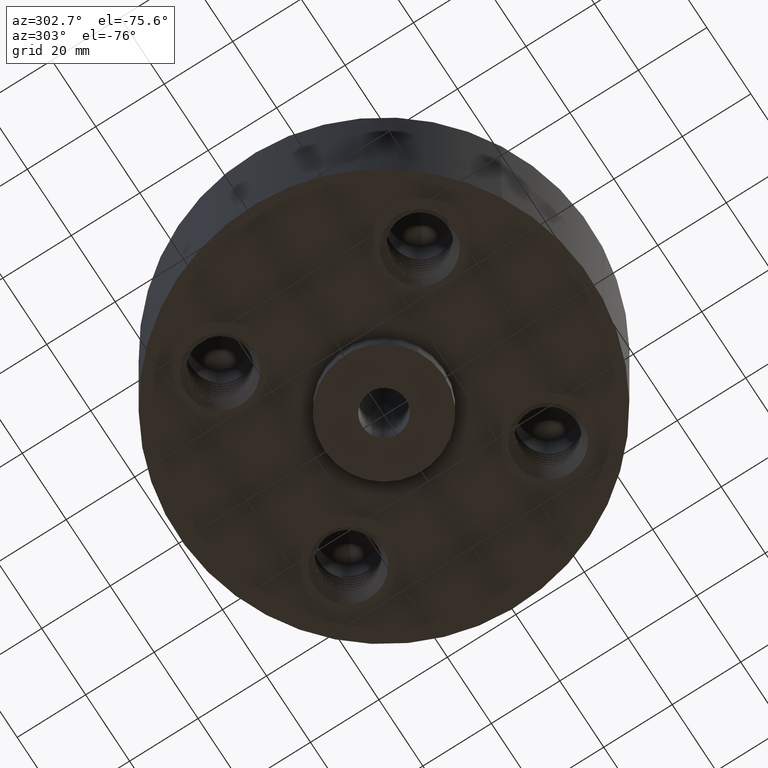
[diagram: clean part render]
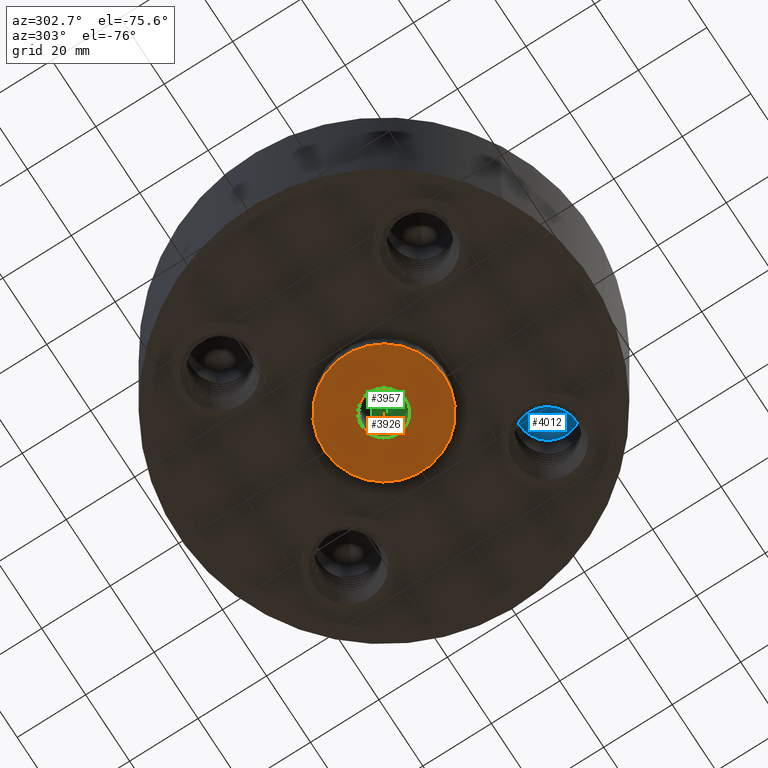
[diagram: same view with three faces highlighted in distinct colors, each labeled with its STEP entity id]
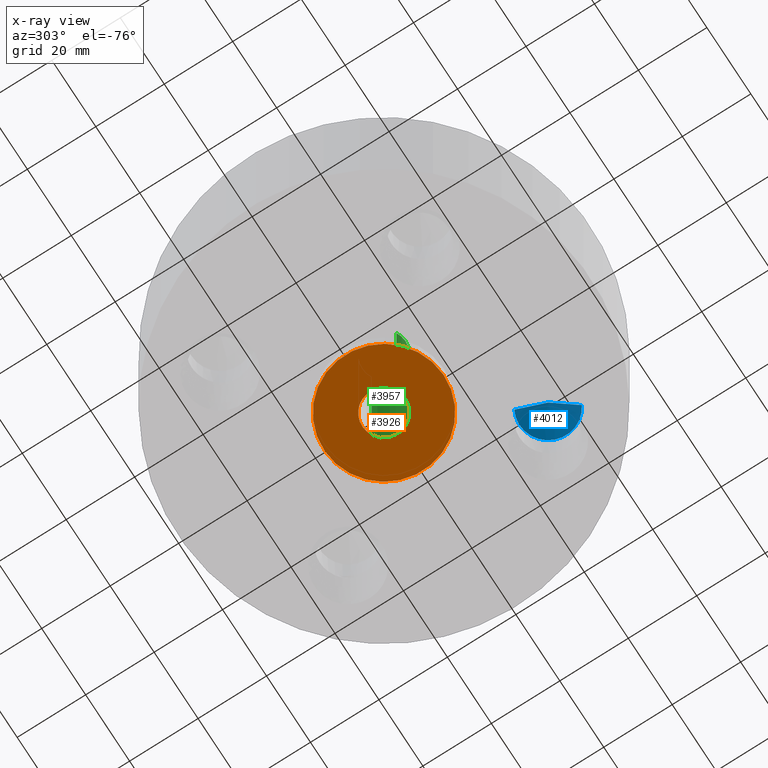
[diagram: x-ray of the same camera — body ghosted, the three highlighted faces saturated]
A machine part, auxiliary view with three faces highlighted in distinct colors.
The next image is the same camera in x-ray (body ghosted, the three faces saturated) — at least one of them is partly hidden behind the body in this view.
Their STEP definitions:

[orange] entity #3926 — the highlighted planar face has unit normal (0, 0, -1).
#3434=AXIS2_PLACEMENT_3D('Circle Axis2P3D',#3432,#3433,$) ;
#3460=AXIS2_PLACEMENT_3D('Circle Axis2P3D',#3458,#3459,$) ;
#3902=AXIS2_PLACEMENT_3D('Plane Axis2P3D',#3899,#3900,#3901) ;
#3910=AXIS2_PLACEMENT_3D('Circle Axis2P3D',#3908,#3909,$) ;
#3919=AXIS2_PLACEMENT_3D('Circle Axis2P3D',#3917,#3918,$) ;
#3432=CARTESIAN_POINT('Axis2P3D Location',(0.,0.,-0.250000000001)) ;
#3436=CARTESIAN_POINT('Vertex',(0.330803621638,0.605531967707,-0.250000000001)) ;
#3438=CARTESIAN_POINT('Vertex',(-0.330803621638,-0.605531967707,-0.250000000001)) ;
#3458=CARTESIAN_POINT('Axis2P3D Location',(0.,0.,-0.250000000001)) ;
#3899=CARTESIAN_POINT('Axis2P3D Location',(0.,0.690000000003,-0.250000000001)) ;
#3908=CARTESIAN_POINT('Axis2P3D Location',(0.,0.,-0.250000000001)) ;
#3912=CARTESIAN_POINT('Vertex',(0.119856384652,0.219395640473,-0.250000000001)) ;
#3914=CARTESIAN_POINT('Vertex',(-0.119856384652,-0.219395640473,-0.250000000001)) ;
#3917=CARTESIAN_POINT('Axis2P3D Location',(0.,0.,-0.250000000001)) ;
#3433=DIRECTION('Axis2P3D Direction',(0.,0.,-0.0393700787402)) ;
#3459=DIRECTION('Axis2P3D Direction',(0.,0.,-0.0393700787402)) ;
#3900=DIRECTION('Axis2P3D Direction',(0.,0.,-0.0393700787402)) ;
#3901=DIRECTION('Axis2P3D XDirection',(0.0393700787402,0.,0.)) ;
#3909=DIRECTION('Axis2P3D Direction',(0.,0.,-0.0393700787402)) ;
#3918=DIRECTION('Axis2P3D Direction',(0.,0.,-0.0393700787402)) ;
#3905=ORIENTED_EDGE('',*,*,#3462,.T.) ;
#3906=ORIENTED_EDGE('',*,*,#3440,.T.) ;
#3923=ORIENTED_EDGE('',*,*,#3916,.F.) ;
#3924=ORIENTED_EDGE('',*,*,#3921,.F.) ;
#3925=FACE_BOUND('',#3922,.T.) ;
#3926=ADVANCED_FACE('PartBody',(#3907,#3925),#3903,.T.) ;
#3435=CIRCLE('generated circle',#3434,0.690000000003) ;
#3461=CIRCLE('generated circle',#3460,0.690000000003) ;
#3911=CIRCLE('generated circle',#3910,0.250000000001) ;
#3920=CIRCLE('generated circle',#3919,0.250000000001) ;
#3440=EDGE_CURVE('',#3437,#3439,#3435,.T.) ;
#3462=EDGE_CURVE('',#3439,#3437,#3461,.T.) ;
#3916=EDGE_CURVE('',#3913,#3915,#3911,.T.) ;
#3921=EDGE_CURVE('',#3915,#3913,#3920,.T.) ;
#3904=EDGE_LOOP('',(#3905,#3906)) ;
#3922=EDGE_LOOP('',(#3923,#3924)) ;
#3907=FACE_OUTER_BOUND('',#3904,.T.) ;
#3903=PLANE('',#3902) ;
#3437=VERTEX_POINT('',#3436) ;
#3439=VERTEX_POINT('',#3438) ;
#3913=VERTEX_POINT('',#3912) ;
#3915=VERTEX_POINT('',#3914) ;

[blue] entity #4012 — the highlighted conical surface has half-angle 60 deg.
#3973=AXIS2_PLACEMENT_3D('Cone Axis2P3D',#3970,#3971,#3972) ;
#4004=AXIS2_PLACEMENT_3D('Circle Axis2P3D',#4002,#4003,$) ;
#3970=CARTESIAN_POINT('Axis2P3D Location',(1.14904851943,-1.14904851943,1.4993708883)) ;
#3975=CARTESIAN_POINT('Line Origine',(1.22767430776,-1.29297205958,1.40468544415)) ;
#3979=CARTESIAN_POINT('Vertex',(1.14904851943,-1.14904851943,1.4993708883)) ;
#3981=CARTESIAN_POINT('Vertex',(1.3063000961,-1.43689559973,1.31000000001)) ;
#3988=CARTESIAN_POINT('Vertex',(0.99179694277,-0.861201439132,1.31000000001)) ;
#3991=CARTESIAN_POINT('Line Origine',(1.0704227311,-1.00512497928,1.40468544415)) ;
#4002=CARTESIAN_POINT('Axis2P3D Location',(1.14904851943,-1.14904851943,1.31000000001)) ;
#3971=DIRECTION('Axis2P3D Direction',(-0.,-0.,-0.0393700787402)) ;
#3972=DIRECTION('Axis2P3D XDirection',(-0.0188750212049,0.0345504945626,0.)) ;
#3976=DIRECTION('Vector Direction',(0.0163462478604,-0.0299216060045,-0.0196850393701)) ;
#3992=DIRECTION('Vector Direction',(-0.0163462478604,0.0299216060045,-0.0196850393701)) ;
#4003=DIRECTION('Axis2P3D Direction',(0.,0.,-0.0393700787402)) ;
#3977=VECTOR('Line Direction',#3976,0.0393700787402) ;
#3993=VECTOR('Line Direction',#3992,0.0393700787402) ;
#4008=ORIENTED_EDGE('',*,*,#3995,.T.) ;
#4009=ORIENTED_EDGE('',*,*,#4006,.F.) ;
#4010=ORIENTED_EDGE('',*,*,#3983,.F.) ;
#4012=ADVANCED_FACE('PartBody',(#4011),#3974,.F.) ;
#4005=CIRCLE('generated circle',#4004,0.328000000001) ;
#3974=CONICAL_SURFACE('Cone',#3973,0.,1.0471975512) ;
#3983=EDGE_CURVE('',#3980,#3982,#3978,.T.) ;
#3995=EDGE_CURVE('',#3980,#3989,#3994,.T.) ;
#4006=EDGE_CURVE('',#3982,#3989,#4005,.F.) ;
#4007=EDGE_LOOP('',(#4008,#4009,#4010)) ;
#4011=FACE_OUTER_BOUND('',#4007,.T.) ;
#3978=LINE('Line',#3975,#3977) ;
#3994=LINE('Line',#3991,#3993) ;
#3980=VERTEX_POINT('',#3979) ;
#3982=VERTEX_POINT('',#3981) ;
#3989=VERTEX_POINT('',#3988) ;

[green] entity #3957 — the highlighted cylindrical surface (edge-blend (fillet) strip) has radius 6.35 mm, axis along (0, 0, -1).
#3910=AXIS2_PLACEMENT_3D('Circle Axis2P3D',#3908,#3909,$) ;
#3930=AXIS2_PLACEMENT_3D('Cylinder Axis2P3D',#3927,#3928,#3929) ;
#3934=AXIS2_PLACEMENT_3D('Circle Axis2P3D',#3932,#3933,$) ;
#3908=CARTESIAN_POINT('Axis2P3D Location',(0.,0.,-0.250000000001)) ;
#3912=CARTESIAN_POINT('Vertex',(0.119856384652,0.219395640473,-0.250000000001)) ;
#3914=CARTESIAN_POINT('Vertex',(-0.119856384652,-0.219395640473,-0.250000000001)) ;
#3927=CARTESIAN_POINT('Axis2P3D Location',(0.,0.,0.875000000003)) ;
#3932=CARTESIAN_POINT('Axis2P3D Location',(0.,0.,2.00000000001)) ;
#3936=CARTESIAN_POINT('Vertex',(0.119856384652,0.219395640473,2.00000000001)) ;
#3938=CARTESIAN_POINT('Vertex',(-0.119856384652,-0.219395640473,2.00000000001)) ;
#3941=CARTESIAN_POINT('Line Origine',(0.119856384652,0.219395640473,0.875000000004)) ;
#3946=CARTESIAN_POINT('Line Origine',(-0.119856384652,-0.219395640473,0.875000000004)) ;
#3909=DIRECTION('Axis2P3D Direction',(0.,0.,-0.0393700787402)) ;
#3928=DIRECTION('Axis2P3D Direction',(0.,0.,-0.0393700787402)) ;
#3929=DIRECTION('Axis2P3D XDirection',(-0.0188750212049,-0.0345504945626,0.)) ;
#3933=DIRECTION('Axis2P3D Direction',(0.,0.,-0.0393700787402)) ;
#3942=DIRECTION('Vector Direction',(0.,0.,-0.0393700787402)) ;
#3947=DIRECTION('Vector Direction',(0.,0.,-0.0393700787402)) ;
#3943=VECTOR('Line Direction',#3942,0.0393700787402) ;
#3948=VECTOR('Line Direction',#3947,0.0393700787402) ;
#3952=ORIENTED_EDGE('',*,*,#3940,.F.) ;
#3953=ORIENTED_EDGE('',*,*,#3945,.T.) ;
#3954=ORIENTED_EDGE('',*,*,#3916,.T.) ;
#3955=ORIENTED_EDGE('',*,*,#3950,.F.) ;
#3957=ADVANCED_FACE('PartBody',(#3956),#3931,.F.) ;
#3911=CIRCLE('generated circle',#3910,0.250000000001) ;
#3935=CIRCLE('generated circle',#3934,0.250000000001) ;
#3931=CYLINDRICAL_SURFACE('generated cylinder',#3930,0.250000000001) ;
#3916=EDGE_CURVE('',#3913,#3915,#3911,.T.) ;
#3940=EDGE_CURVE('',#3937,#3939,#3935,.T.) ;
#3945=EDGE_CURVE('',#3937,#3913,#3944,.T.) ;
#3950=EDGE_CURVE('',#3939,#3915,#3949,.T.) ;
#3951=EDGE_LOOP('',(#3952,#3953,#3954,#3955)) ;
#3956=FACE_OUTER_BOUND('',#3951,.T.) ;
#3944=LINE('Line',#3941,#3943) ;
#3949=LINE('Line',#3946,#3948) ;
#3913=VERTEX_POINT('',#3912) ;
#3915=VERTEX_POINT('',#3914) ;
#3937=VERTEX_POINT('',#3936) ;
#3939=VERTEX_POINT('',#3938) ;